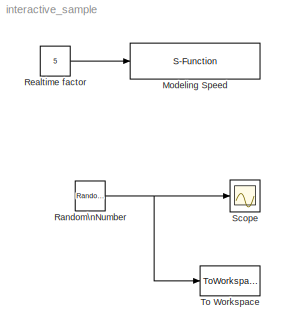
MODEL interactive_sample
KIND model
BLOCK [S-Function] Modeling Speed
  EnableBusSupport = off
  FunctionName = modeling_speed
  Ports = [1]
  SID = 4
BLOCK [RandomNumber] Random\nNumber
  SID = 17
  SampleTime = 0.1
  Variance = 10
BLOCK [Constant] Realtime factor
  SID = 23
  Value = 5
BLOCK [Scope] Scope
  DataFormat = Array
  Floating = off
  NumInputPorts = 1
  Ports = [1]
  SID = 7
BLOCK [ToWorkspace] To Workspace
  FixptAsFi = on
  MaxDataPoints = inf
  Ports = [1]
  SID = 22
  SampleTime = -1
  SaveFormat = Array
  VariableName = simout
NET Random\nNumber:1 -> Scope:1, To Workspace:1
LINE Realtime factor:1 -> Modeling Speed:1
note: NET lines group one-source signal fan-out (src -> all destinations, sorted); 1:1 wires keep LINE
